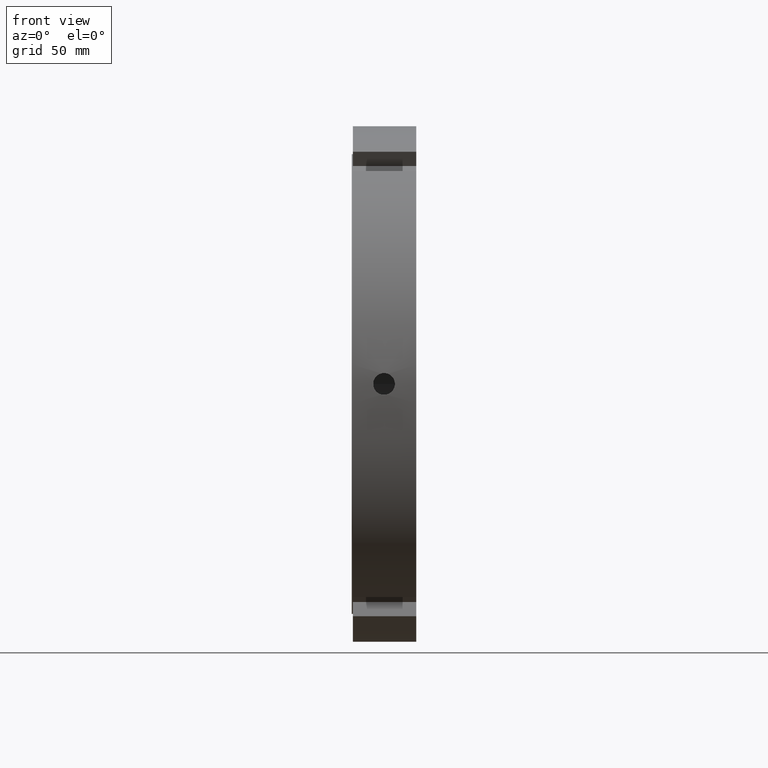
[diagram: clean part render]
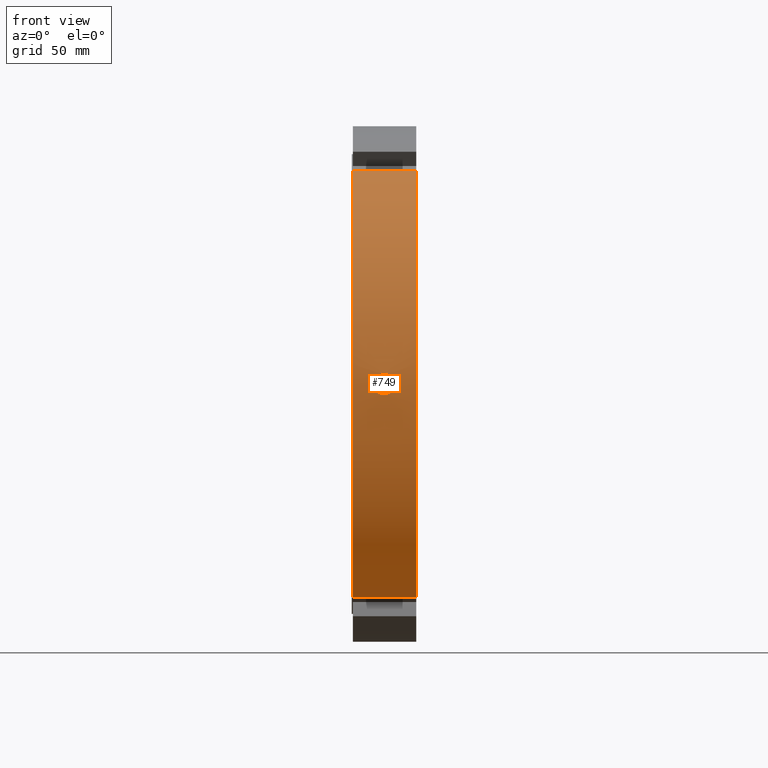
[diagram: same view with one face highlighted and labeled with its STEP entity id]
A machine part, front view. The second image highlights one B-rep face of the part: STEP entity #749.
In plain terms, the highlighted cylindrical surface (partial cylindrical patch) has radius 120 mm, axis along (1, 0, 0).
Its self-contained STEP definition (entity closure, byte-faithful):
#249=CARTESIAN_POINT('',(14.999999999999973,-119.89481384681254,5.023306942460057));
#250=VERTEX_POINT('',#249);
#251=CARTESIAN_POINT('',(14.999999999999973,-119.89481384681254,5.023306942460057));
#252=CARTESIAN_POINT('',(15.634546196469161,-119.89481384681254,5.023306942460057));
#253=CARTESIAN_POINT('',(16.311337213413207,-119.90033817756046,4.896477447096847));
#254=CARTESIAN_POINT('',(17.556271259865767,-119.92028763704724,4.38077612763781));
#255=CARTESIAN_POINT('',(18.124420592689919,-119.9344240826299,3.991908393095058));
#256=CARTESIAN_POINT('',(19.021606140913534,-119.96092744292112,3.094721019560044));
#257=CARTESIAN_POINT('',(19.410472343875124,-119.97501403841376,2.526572379621545));
#258=CARTESIAN_POINT('',(19.926171325682464,-119.99477055048874,1.281640371224193));
#259=CARTESIAN_POINT('',(20.052999999999976,-120.00015333923247,0.604850762487925));
#260=CARTESIAN_POINT('',(20.052999999999976,-119.99983931218253,-0.664242014044146));
#261=CARTESIAN_POINT('',(19.926169489853049,-119.99412150736595,-1.341033993452599));
#262=CARTESIAN_POINT('',(19.410467423717307,-119.9737485520764,-2.585967296920007));
#263=CARTESIAN_POINT('',(19.021600068503481,-119.95938052047254,-3.154115043157699));
#264=CARTESIAN_POINT('',(18.124415308295834,-119.93243264434751,-4.051297956461044));
#265=CARTESIAN_POINT('',(17.556268320512821,-119.91810344972495,-4.440163689279999));
#266=CARTESIAN_POINT('',(16.311337221939446,-119.89789826045907,-4.955863329679188));
#267=CARTESIAN_POINT('',(15.634546710730191,-119.89231097648771,-5.082693057539943));
#268=CARTESIAN_POINT('',(14.365453289269759,-119.89231097648771,-5.082693057539943));
#269=CARTESIAN_POINT('',(13.688662778060497,-119.89789826045907,-4.955863329679187));
#270=CARTESIAN_POINT('',(12.443731679487124,-119.91810344972495,-4.440163689279999));
#271=CARTESIAN_POINT('',(11.875584691704116,-119.93243264434751,-4.051297956461044));
#272=CARTESIAN_POINT('',(10.978399931496465,-119.95938052047254,-3.154115043157701));
#273=CARTESIAN_POINT('',(10.589532576282643,-119.9737485520764,-2.585967296920008));
#274=CARTESIAN_POINT('',(10.073830510146902,-119.99412150736595,-1.341033993452601));
#275=CARTESIAN_POINT('',(9.946999999999974,-119.99983931218253,-0.664242014044148));
#276=CARTESIAN_POINT('',(9.946999999999974,-120.00015333923247,0.604850762487922));
#277=CARTESIAN_POINT('',(10.073828674317484,-119.99477055048877,1.281640371224191));
#278=CARTESIAN_POINT('',(10.589527656124822,-119.97501403841378,2.526572379621542));
#279=CARTESIAN_POINT('',(10.978393859086415,-119.96092744292113,3.094721019560042));
#280=CARTESIAN_POINT('',(11.875579407310026,-119.9344240826299,3.991908393095057));
#281=CARTESIAN_POINT('',(12.443728740134176,-119.92028763704724,4.38077612763781));
#282=CARTESIAN_POINT('',(13.688662786586738,-119.90033817756046,4.896477447096847));
#283=CARTESIAN_POINT('',(14.365453803530785,-119.89481384681254,5.023306942460055));
#284=CARTESIAN_POINT('',(14.999999999999973,-119.89481384681254,5.023306942460055));
#285=B_SPLINE_CURVE_WITH_KNOTS('',3,(#251,#252,#253,#254,#255,#256,#257,#258,#259,#260,#261,#262,#263,#264,#265,#266,#267,#268,#269,#270,#271,#272,#273,#274,#275,#276,#277,#278,#279,#280,#281,#282,#283,#284),.UNSPECIFIED.,.T.,.U.,(4,2,2,2,2,2,2,2,2,2,2,2,2,2,2,2,4),(0.0,0.190363858940757,0.380727717881513,0.571090869717615,0.761454021553716,0.951818714332765,1.142183407111815,1.332547420330879,1.522911433549944,1.713275446769009,1.903639459988073,2.094004152767123,2.284368845546172,2.474731997382273,2.665095149218375,2.855459008159131,3.045822867099888),.UNSPECIFIED.);
#286=EDGE_CURVE('',#250,#250,#285,.T.);
#339=CARTESIAN_POINT('',(0.499999999999972,-67.625240659597395,-99.130352696495237));
#340=VERTEX_POINT('',#339);
#355=CARTESIAN_POINT('',(29.999999999999972,-67.625240659597395,-99.130352696495237));
#356=VERTEX_POINT('',#355);
#363=CARTESIAN_POINT('',(0.499999999999972,-67.625240659597381,-99.130352696495237));
#364=DIRECTION('',(1.0,0.0,0.0));
#365=VECTOR('',#364,29.5);
#366=LINE('',#363,#365);
#367=EDGE_CURVE('',#340,#356,#366,.T.);
#510=CARTESIAN_POINT('',(0.499999999999972,-67.625240659597353,99.130352696495265));
#511=VERTEX_POINT('',#510);
#518=CARTESIAN_POINT('',(29.999999999999972,-67.625240659597353,99.130352696495265));
#519=VERTEX_POINT('',#518);
#520=CARTESIAN_POINT('',(29.999999999999972,-67.625240659597338,99.130352696495265));
#521=DIRECTION('',(-1.0,0.0,0.0));
#522=VECTOR('',#521,29.5);
#523=LINE('',#520,#522);
#524=EDGE_CURVE('',#519,#511,#523,.T.);
#587=CARTESIAN_POINT('',(29.999999999999972,0.0,0.0));
#588=DIRECTION('',(1.0,0.0,0.0));
#589=DIRECTION('',(0.0,1.0,0.0));
#590=AXIS2_PLACEMENT_3D('',#587,#588,#589);
#591=CIRCLE('',#590,120.0);
#592=EDGE_CURVE('',#519,#356,#591,.T.);
#729=CARTESIAN_POINT('',(15.24999999999997,0.0,0.0));
#730=DIRECTION('',(1.0,0.0,0.0));
#731=DIRECTION('',(0.0,1.0,0.0));
#732=AXIS2_PLACEMENT_3D('',#729,#730,#731);
#733=CYLINDRICAL_SURFACE('',#732,120.0);
#734=ORIENTED_EDGE('',*,*,#367,.T.);
#735=ORIENTED_EDGE('',*,*,#592,.F.);
#736=ORIENTED_EDGE('',*,*,#524,.T.);
#737=CARTESIAN_POINT('',(0.499999999999967,0.0,0.0));
#738=DIRECTION('',(1.0,0.0,0.0));
#739=DIRECTION('',(0.0,1.0,0.0));
#740=AXIS2_PLACEMENT_3D('',#737,#738,#739);
#741=CIRCLE('',#740,120.0);
#742=EDGE_CURVE('',#511,#340,#741,.T.);
#743=ORIENTED_EDGE('',*,*,#742,.T.);
#744=EDGE_LOOP('',(#734,#735,#736,#743));
#745=FACE_OUTER_BOUND('',#744,.T.);
#746=ORIENTED_EDGE('',*,*,#286,.T.);
#747=EDGE_LOOP('',(#746));
#748=FACE_BOUND('',#747,.T.);
#749=ADVANCED_FACE('',(#745,#748),#733,.T.);